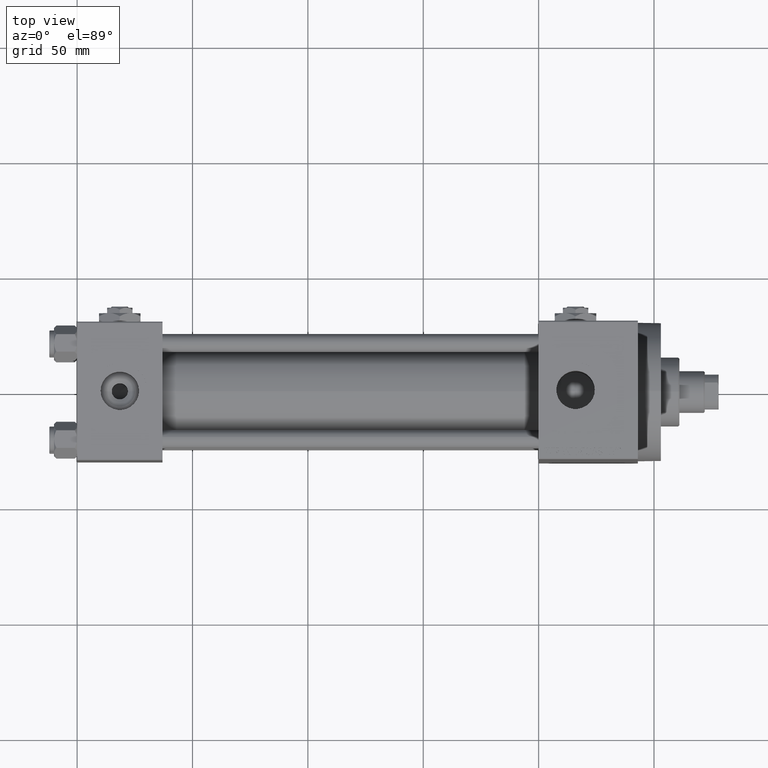
[diagram: clean part render]
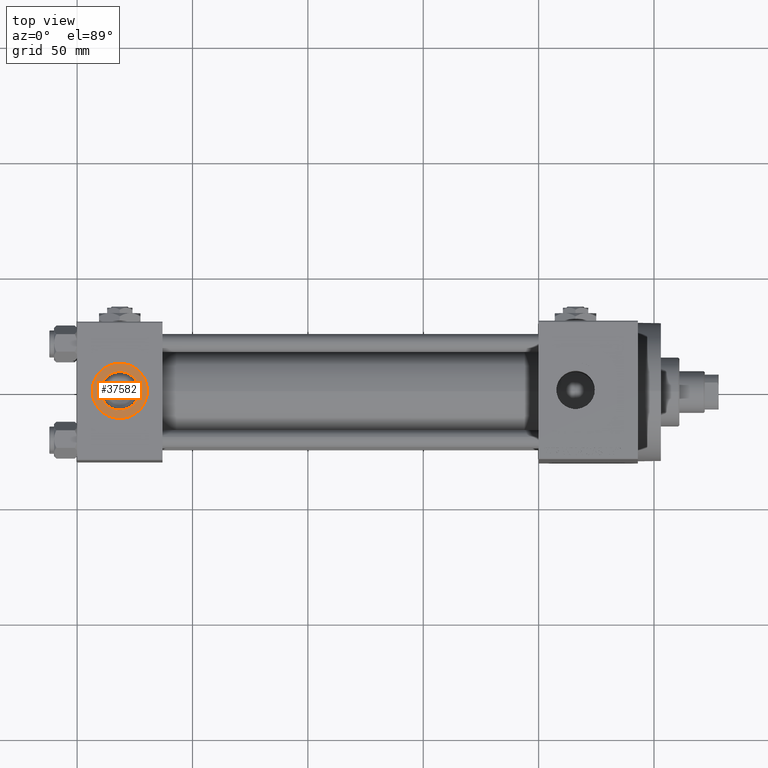
[diagram: same view with one face highlighted and labeled with its STEP entity id]
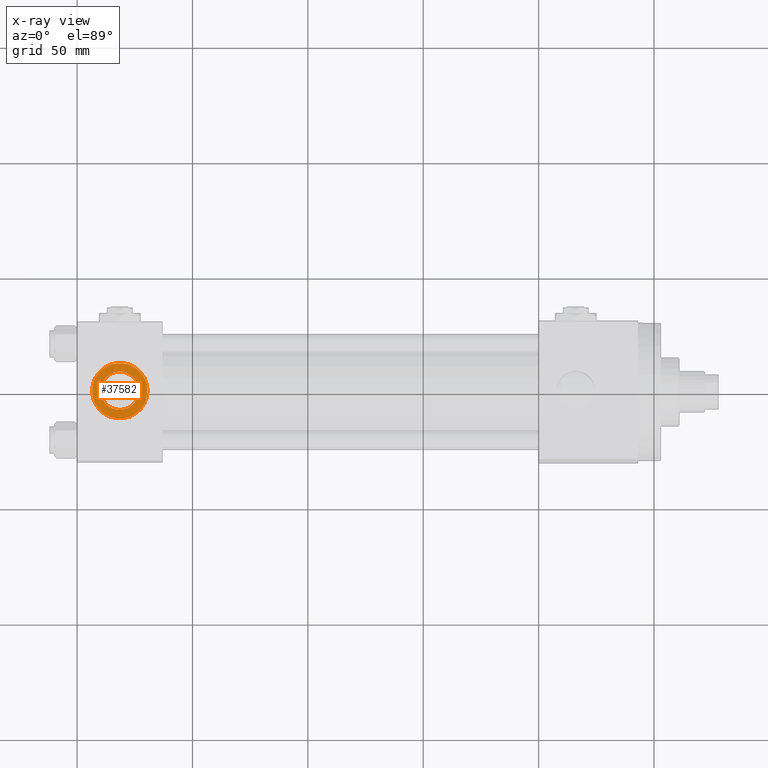
[diagram: x-ray of the same camera — body ghosted, the highlighted face saturated]
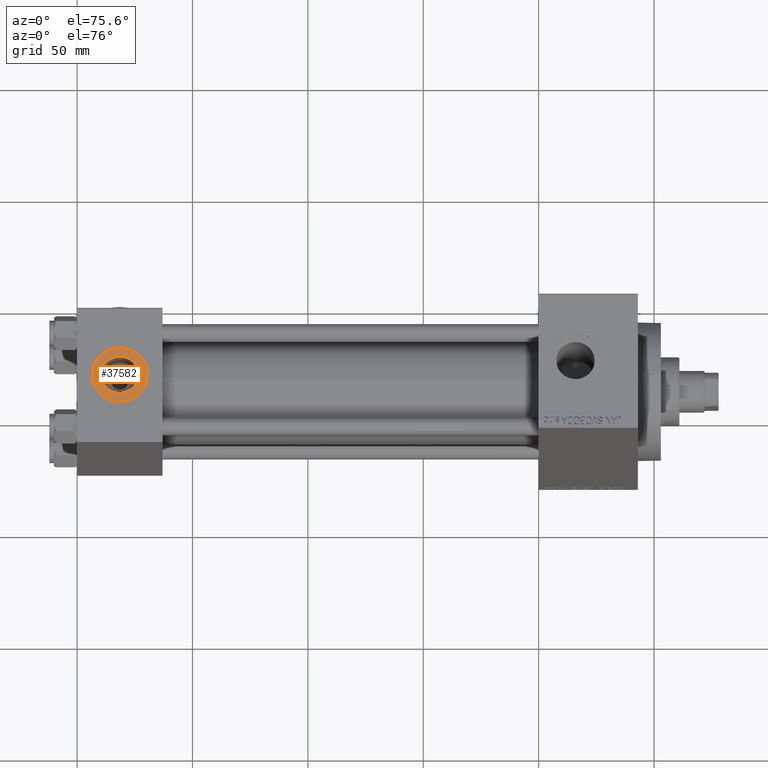
[diagram: same view with one face highlighted and labeled with its STEP entity id]
A machine part, top view. The second image highlights one B-rep face of the part: STEP entity #37582.
The next image is the same camera in x-ray: the body ghosted, the highlighted face saturated — about 0% of this face is hidden behind the body in this view.
A second angle (auxiliary view) of the same face is appended — the face is thin or edge-on in the first view.
In plain terms, the highlighted planar face has unit normal (0, 0, 1).
Its self-contained STEP definition (entity closure, byte-faithful):
#1975 = CIRCLE ( 'NONE', #23541, 12.00000000000000000 ) ;
#2156 = DIRECTION ( 'NONE',  ( 1.000000000000000000, 0.000000000000000000, 0.000000000000000000 ) ) ;
#3244 = CARTESIAN_POINT ( 'NONE',  ( 10.16999999999999638, -2.449316168263869821E-15, 29.79999999999999716 ) ) ;
#5269 = ORIENTED_EDGE ( 'NONE', *, *, #14606, .F. ) ;
#5465 = CIRCLE ( 'NONE', #21440, 12.00000000000000000 ) ;
#5770 = DIRECTION ( 'NONE',  ( 0.000000000000000000, 0.000000000000000000, 1.000000000000000000 ) ) ;
#5920 = DIRECTION ( 'NONE',  ( 0.000000000000000000, 0.000000000000000000, 1.000000000000000000 ) ) ;
#6034 = CARTESIAN_POINT ( 'NONE',  ( 18.50000000000000000, -3.469446951953614978E-15, 29.79999999999999716 ) ) ;
#10147 = ORIENTED_EDGE ( 'NONE', *, *, #10994, .T. ) ;
#10150 = CARTESIAN_POINT ( 'NONE',  ( 18.50000000000000000, -3.469446951953614978E-15, 29.79999999999999716 ) ) ;
#10355 = CARTESIAN_POINT ( 'NONE',  ( 18.50000000000000000, -3.469446951953614978E-15, 29.79999999999999716 ) ) ;
#10440 = CARTESIAN_POINT ( 'NONE',  ( 6.499999999999997335, -1.999870792976790833E-15, 29.79999999999999716 ) ) ;
#10517 = DIRECTION ( 'NONE',  ( 1.000000000000000000, 0.000000000000000000, 0.000000000000000000 ) ) ;
#10994 = EDGE_CURVE ( 'NONE', #22594, #45250, #1975, .T. ) ;
#12575 = CIRCLE ( 'NONE', #24578, 8.330000000000000071 ) ;
#14006 = DIRECTION ( 'NONE',  ( 1.000000000000000000, 0.000000000000000000, 0.000000000000000000 ) ) ;
#14295 = EDGE_LOOP ( 'NONE', ( #38551, #10147 ) ) ;
#14606 = EDGE_CURVE ( 'NONE', #20653, #22345, #19699, .T. ) ;
#15429 = CARTESIAN_POINT ( 'NONE',  ( 26.82999999999999829, -3.469446951953614978E-15, 29.79999999999999716 ) ) ;
#16513 = EDGE_CURVE ( 'NONE', #22345, #20653, #12575, .T. ) ;
#19699 = CIRCLE ( 'NONE', #33276, 8.330000000000000071 ) ;
#20062 = AXIS2_PLACEMENT_3D ( 'NONE', #10355, #22388, #33153 ) ;
#20653 = VERTEX_POINT ( 'NONE', #15429 ) ;
#21440 = AXIS2_PLACEMENT_3D ( 'NONE', #44793, #5770, #14006 ) ;
#22345 = VERTEX_POINT ( 'NONE', #3244 ) ;
#22388 = DIRECTION ( 'NONE',  ( 0.000000000000000000, 0.000000000000000000, 1.000000000000000000 ) ) ;
#22594 = VERTEX_POINT ( 'NONE', #10440 ) ;
#23064 = EDGE_CURVE ( 'NONE', #45250, #22594, #5465, .T. ) ;
#23541 = AXIS2_PLACEMENT_3D ( 'NONE', #10150, #5920, #2156 ) ;
#24578 = AXIS2_PLACEMENT_3D ( 'NONE', #39591, #32095, #24586 ) ;
#24586 = DIRECTION ( 'NONE',  ( 1.000000000000000000, 0.000000000000000000, 0.000000000000000000 ) ) ;
#28063 = CARTESIAN_POINT ( 'NONE',  ( 30.50000000000000000, -3.469446951953614978E-15, 29.79999999999999716 ) ) ;
#28910 = FACE_OUTER_BOUND ( 'NONE', #14295, .T. ) ;
#32095 = DIRECTION ( 'NONE',  ( 0.000000000000000000, 0.000000000000000000, 1.000000000000000000 ) ) ;
#33153 = DIRECTION ( 'NONE',  ( 1.000000000000000000, 0.000000000000000000, -0.000000000000000000 ) ) ;
#33276 = AXIS2_PLACEMENT_3D ( 'NONE', #6034, #44324, #10517 ) ;
#35078 = EDGE_LOOP ( 'NONE', ( #5269, #47707 ) ) ;
#37582 = ADVANCED_FACE ( 'NONE', ( #49153, #28910 ), #40417, .T. ) ;
#38551 = ORIENTED_EDGE ( 'NONE', *, *, #23064, .T. ) ;
#39591 = CARTESIAN_POINT ( 'NONE',  ( 18.50000000000000000, -3.469446951953614978E-15, 29.79999999999999716 ) ) ;
#40417 = PLANE ( 'NONE',  #20062 ) ;
#44324 = DIRECTION ( 'NONE',  ( 0.000000000000000000, 0.000000000000000000, 1.000000000000000000 ) ) ;
#44793 = CARTESIAN_POINT ( 'NONE',  ( 18.50000000000000000, -3.469446951953614978E-15, 29.79999999999999716 ) ) ;
#45250 = VERTEX_POINT ( 'NONE', #28063 ) ;
#47707 = ORIENTED_EDGE ( 'NONE', *, *, #16513, .F. ) ;
#49153 = FACE_BOUND ( 'NONE', #35078, .T. ) ;